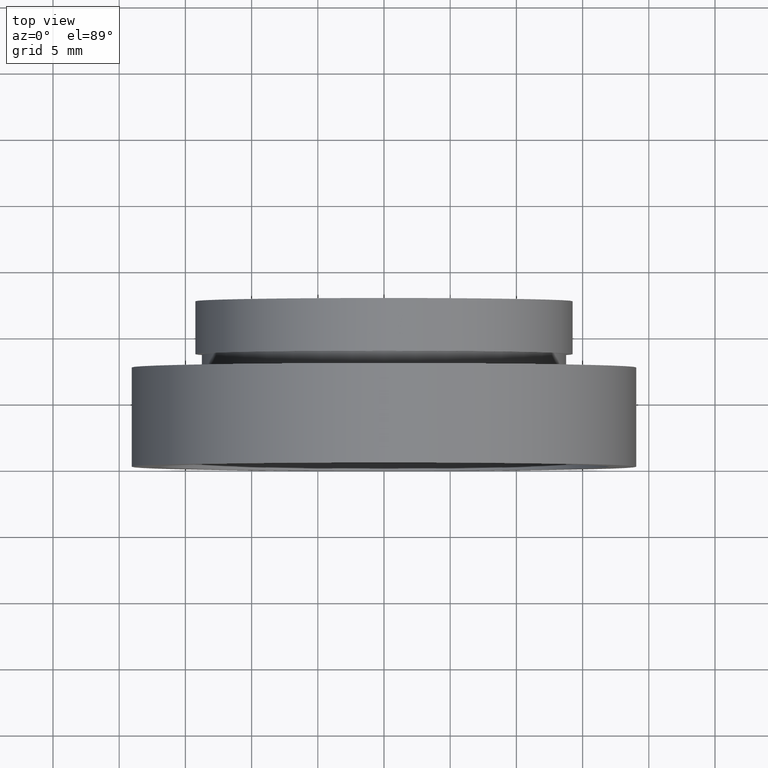
[diagram: clean part render]
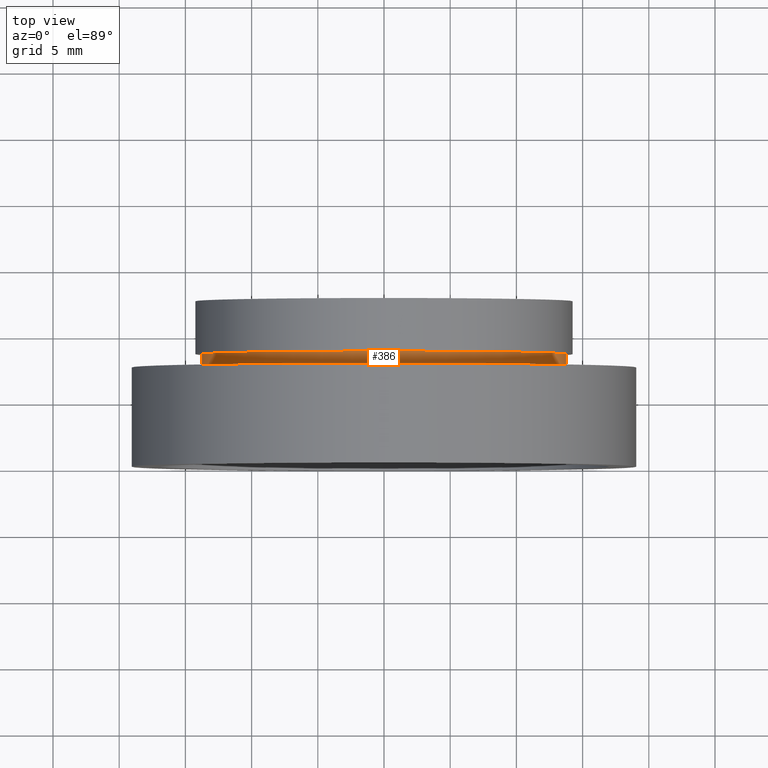
[diagram: same view with one face highlighted and labeled with its STEP entity id]
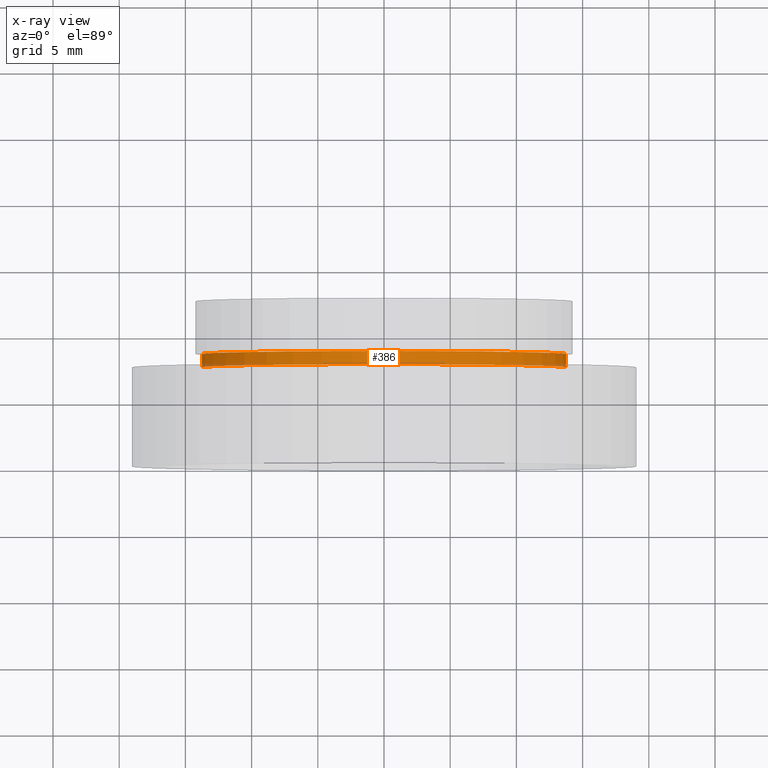
[diagram: x-ray of the same camera — body ghosted, the highlighted face saturated]
A machine part, top view. The second image highlights one B-rep face of the part: STEP entity #386.
The next image is the same camera in x-ray: the body ghosted, the highlighted face saturated — about 5% of this face is hidden behind the body in this view.
In plain terms, the highlighted cylindrical surface (partial cylindrical patch) has radius 13.75 mm, axis along (-0, 1, -0).
Its self-contained STEP definition (entity closure, byte-faithful):
#5 = VERTEX_POINT ( 'NONE', #405 ) ;
#6 = ORIENTED_EDGE ( 'NONE', *, *, #223, .F. ) ;
#8 = EDGE_CURVE ( 'NONE', #5, #571, #325, .T. ) ;
#17 = VERTEX_POINT ( 'NONE', #131 ) ;
#22 = CARTESIAN_POINT ( 'NONE',  ( 13.75000000000000200, 8.500000000000000000, 1.683889348827610700E-015 ) ) ;
#23 = CARTESIAN_POINT ( 'NONE',  ( -13.75000000000000000, 16.88601823708207700, 0.0000000000000000000 ) ) ;
#38 = ORIENTED_EDGE ( 'NONE', *, *, #144, .T. ) ;
#84 = DIRECTION ( 'NONE',  ( -1.000000000000000000, -1.261617073437678000E-016, 0.0000000000000000000 ) ) ;
#118 = AXIS2_PLACEMENT_3D ( 'NONE', #421, #122, #84 ) ;
#122 = DIRECTION ( 'NONE',  ( -1.224646799147351000E-016, 1.000000000000000000, -0.0000000000000000000 ) ) ;
#131 = CARTESIAN_POINT ( 'NONE',  ( -13.74999999999999800, 7.499999999999996400, 0.0000000000000000000 ) ) ;
#138 = EDGE_CURVE ( 'NONE', #593, #571, #413, .T. ) ;
#144 = EDGE_CURVE ( 'NONE', #17, #593, #452, .T. ) ;
#149 = DIRECTION ( 'NONE',  ( -1.224646799147351000E-016, 1.000000000000000000, -0.0000000000000000000 ) ) ;
#152 = ORIENTED_EDGE ( 'NONE', *, *, #8, .F. ) ;
#164 = CARTESIAN_POINT ( 'NONE',  ( 13.75000000000000200, 7.500000000000000000, 1.683889348827610700E-015 ) ) ;
#176 = FACE_OUTER_BOUND ( 'NONE', #339, .T. ) ;
#223 = EDGE_CURVE ( 'NONE', #17, #5, #479, .T. ) ;
#279 = CARTESIAN_POINT ( 'NONE',  ( 13.75000000000000000, 16.88601823708207700, 1.683889348827610700E-015 ) ) ;
#298 = DIRECTION ( 'NONE',  ( -1.224646799147351000E-016, 1.000000000000000000, -0.0000000000000000000 ) ) ;
#316 = DIRECTION ( 'NONE',  ( -1.224646799147351000E-016, 1.000000000000000000, -0.0000000000000000000 ) ) ;
#319 = CYLINDRICAL_SURFACE ( 'NONE', #607, 13.75000000000000000 ) ;
#325 = CIRCLE ( 'NONE', #118, 13.75000000000000000 ) ;
#339 = EDGE_LOOP ( 'NONE', ( #38, #381, #152, #6 ) ) ;
#381 = ORIENTED_EDGE ( 'NONE', *, *, #138, .T. ) ;
#386 = ADVANCED_FACE ( 'NONE', ( #176 ), #319, .T. ) ;
#401 = AXIS2_PLACEMENT_3D ( 'NONE', #619, #316, #604 ) ;
#405 = CARTESIAN_POINT ( 'NONE',  ( -13.74999999999999800, 8.499999999999996400, 0.0000000000000000000 ) ) ;
#413 = LINE ( 'NONE', #279, #520 ) ;
#421 = CARTESIAN_POINT ( 'NONE',  ( 1.026991039163387700E-015, 8.499999999999998200, 0.0000000000000000000 ) ) ;
#452 = CIRCLE ( 'NONE', #401, 13.75000000000000000 ) ;
#467 = CARTESIAN_POINT ( 'NONE',  ( 0.0000000000000000000, 16.88601823708207700, 0.0000000000000000000 ) ) ;
#479 = LINE ( 'NONE', #23, #484 ) ;
#484 = VECTOR ( 'NONE', #298, 1000.000000000000000 ) ;
#520 = VECTOR ( 'NONE', #618, 1000.000000000000000 ) ;
#571 = VERTEX_POINT ( 'NONE', #22 ) ;
#574 = DIRECTION ( 'NONE',  ( -1.000000000000000000, 0.0000000000000000000, 0.0000000000000000000 ) ) ;
#593 = VERTEX_POINT ( 'NONE', #164 ) ;
#604 = DIRECTION ( 'NONE',  ( -1.000000000000000000, -1.261617073437678000E-016, 0.0000000000000000000 ) ) ;
#607 = AXIS2_PLACEMENT_3D ( 'NONE', #467, #149, #574 ) ;
#618 = DIRECTION ( 'NONE',  ( -1.224646799147351000E-016, 1.000000000000000000, -0.0000000000000000000 ) ) ;
#619 = CARTESIAN_POINT ( 'NONE',  ( 1.149455719078122700E-015, 7.499999999999998200, 0.0000000000000000000 ) ) ;